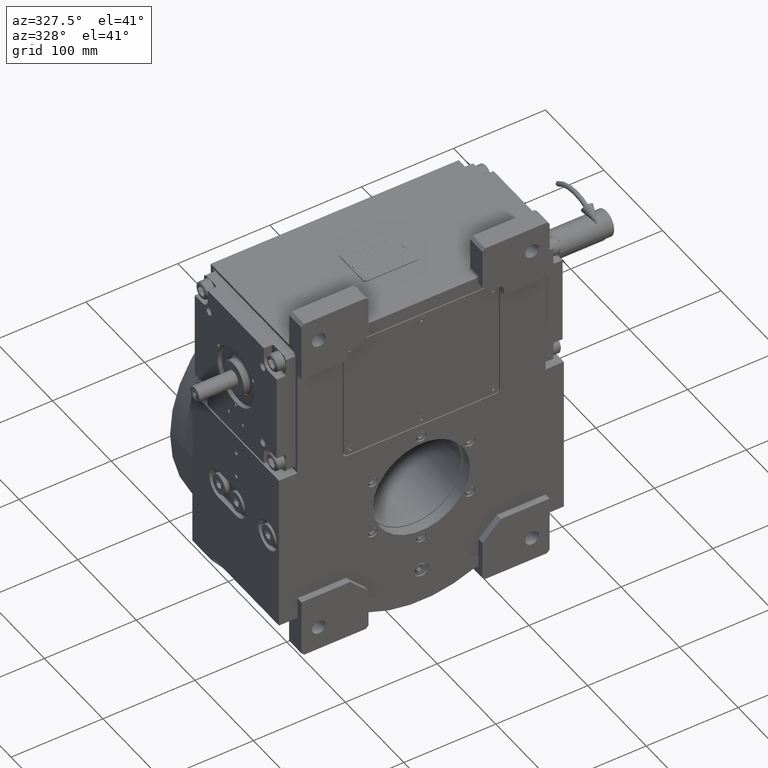
[diagram: clean part render]
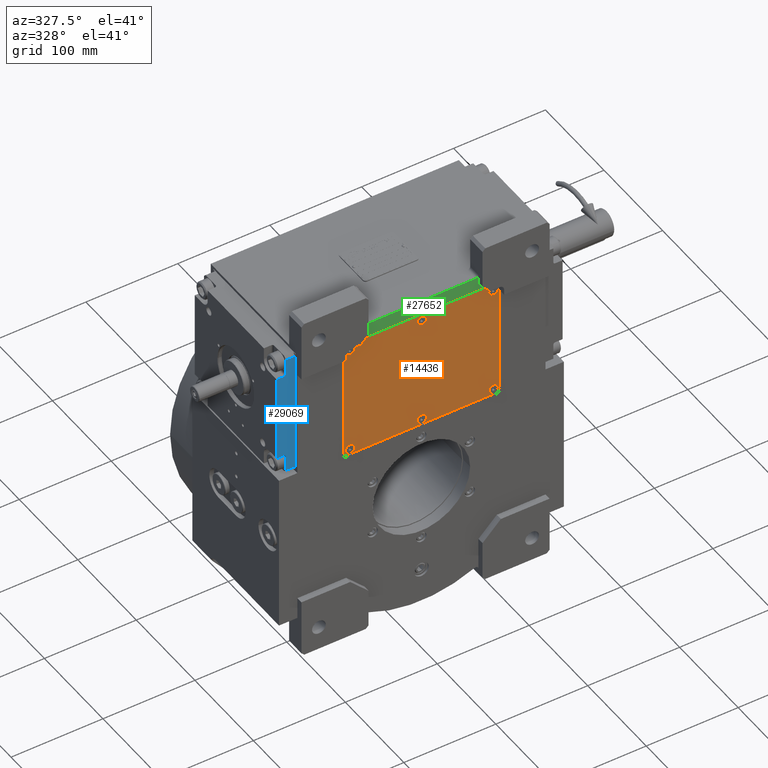
[diagram: same view with three faces highlighted in distinct colors, each labeled with its STEP entity id]
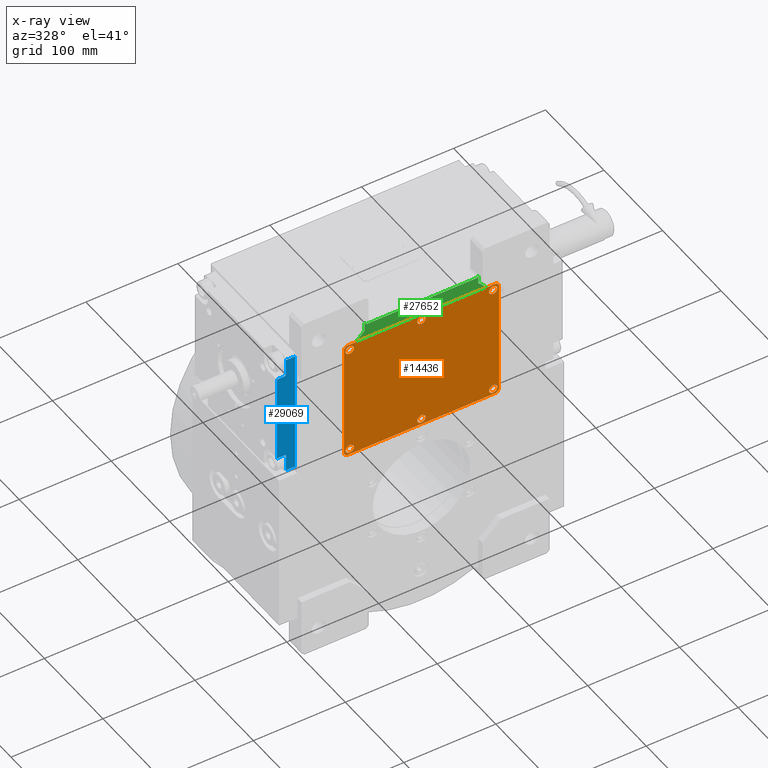
[diagram: x-ray of the same camera — body ghosted, the three highlighted faces saturated]
A machine part, auxiliary view with three faces highlighted in distinct colors.
The next image is the same camera in x-ray (body ghosted, the three faces saturated) — at least one of them is partly hidden behind the body in this view.
Their STEP definitions:

[orange] entity #14436 — the highlighted planar face has unit normal (0, -1, 0).
#95 = EDGE_CURVE ( 'NONE', #20742, #54532, #8365, .T. ) ;
#419 = DIRECTION ( 'NONE',  ( 0.000000000000000000, 0.000000000000000000, 1.000000000000000000 ) ) ;
#2065 = CIRCLE ( 'NONE', #49391, 4.500000000000000000 ) ;
#2094 = VERTEX_POINT ( 'NONE', #49659 ) ;
#2348 = ORIENTED_EDGE ( 'NONE', *, *, #59221, .F. ) ;
#2397 = EDGE_CURVE ( 'NONE', #28544, #5446, #26716, .T. ) ;
#2838 = EDGE_CURVE ( 'NONE', #59181, #66312, #31462, .T. ) ;
#3103 = DIRECTION ( 'NONE',  ( -0.7071067811865474617, 0.7071067811865474617, 0.000000000000000000 ) ) ;
#3483 = EDGE_CURVE ( 'NONE', #25692, #68317, #21182, .T. ) ;
#3926 = CARTESIAN_POINT ( 'NONE',  ( 78.00000000000000000, 60.00000000000000000, 3.000000000000002665 ) ) ;
#3987 = VECTOR ( 'NONE', #41030, 1000.000000000000000 ) ;
#4033 = DIRECTION ( 'NONE',  ( 1.000000000000000000, 0.000000000000000000, 0.000000000000000000 ) ) ;
#4265 = DIRECTION ( 'NONE',  ( 0.7071067811865474617, 0.7071067811865474617, 0.000000000000000000 ) ) ;
#4706 = DIRECTION ( 'NONE',  ( 0.000000000000000000, 0.000000000000000000, 1.000000000000000000 ) ) ;
#5446 = VERTEX_POINT ( 'NONE', #60432 ) ;
#5623 = CARTESIAN_POINT ( 'NONE',  ( 81.50000000000000000, 66.50000000000000000, 3.000000000000002665 ) ) ;
#5798 = DIRECTION ( 'NONE',  ( 1.000000000000000000, 0.000000000000000000, 0.000000000000000000 ) ) ;
#6127 = DIRECTION ( 'NONE',  ( 0.000000000000000000, 0.000000000000000000, 1.000000000000000000 ) ) ;
#6128 = VERTEX_POINT ( 'NONE', #33010 ) ;
#6130 = AXIS2_PLACEMENT_3D ( 'NONE', #62829, #52240, #26164 ) ;
#6432 = ORIENTED_EDGE ( 'NONE', *, *, #12713, .T. ) ;
#6705 = CARTESIAN_POINT ( 'NONE',  ( -81.50000000000000000, 66.50000000000000000, 3.000000000000002665 ) ) ;
#8365 = CIRCLE ( 'NONE', #41051, 4.500000000000003553 ) ;
#8419 = CARTESIAN_POINT ( 'NONE',  ( -84.50000000000000000, 63.50000000000000000, 3.000000000000002665 ) ) ;
#8621 = CIRCLE ( 'NONE', #59299, 4.500000000000003553 ) ;
#8640 = CARTESIAN_POINT ( 'NONE',  ( 84.50000000000000000, -63.50000000000000000, 3.000000000000002665 ) ) ;
#8994 = CARTESIAN_POINT ( 'NONE',  ( 78.00000000000000000, 60.00000000000000000, 3.000000000000002665 ) ) ;
#9216 = FACE_OUTER_BOUND ( 'NONE', #18434, .T. ) ;
#9811 = CARTESIAN_POINT ( 'NONE',  ( -84.50000000000000000, -63.50000000000000000, 3.000000000000002665 ) ) ;
#9847 = ORIENTED_EDGE ( 'NONE', *, *, #27873, .F. ) ;
#10052 = DIRECTION ( 'NONE',  ( 1.000000000000000000, 0.000000000000000000, 0.000000000000000000 ) ) ;
#10630 = DIRECTION ( 'NONE',  ( 0.7071067811865474617, -0.7071067811865474617, 0.000000000000000000 ) ) ;
#10662 = CARTESIAN_POINT ( 'NONE',  ( 84.50000000000000000, 63.50000000000000000, 3.000000000000002665 ) ) ;
#10698 = EDGE_CURVE ( 'NONE', #18057, #58723, #48359, .T. ) ;
#11364 = EDGE_CURVE ( 'NONE', #56060, #2094, #58061, .T. ) ;
#11936 = CARTESIAN_POINT ( 'NONE',  ( 78.00000000000000000, -60.00000000000000000, 3.000000000000002665 ) ) ;
#12713 = EDGE_CURVE ( 'NONE', #66312, #59004, #40838, .T. ) ;
#13568 = DIRECTION ( 'NONE',  ( 1.000000000000000000, 0.000000000000000000, 0.000000000000000000 ) ) ;
#13673 = ORIENTED_EDGE ( 'NONE', *, *, #14890, .F. ) ;
#13954 = DIRECTION ( 'NONE',  ( 0.000000000000000000, 0.000000000000000000, 1.000000000000000000 ) ) ;
#14436 = ADVANCED_FACE ( 'NONE', ( #9216, #31100, #52591, #41667, #47310, #14859, #53276 ), #68123, .T. ) ;
#14859 = FACE_BOUND ( 'NONE', #60916, .T. ) ;
#14890 = EDGE_CURVE ( 'NONE', #58005, #30220, #51268, .T. ) ;
#16406 = EDGE_LOOP ( 'NONE', ( #42037, #37721 ) ) ;
#18017 = EDGE_CURVE ( 'NONE', #2094, #56060, #8621, .T. ) ;
#18057 = VERTEX_POINT ( 'NONE', #9811 ) ;
#18434 = EDGE_LOOP ( 'NONE', ( #39622, #6432, #52791, #35176, #22068, #44655, #32619, #45661 ) ) ;
#18590 = ORIENTED_EDGE ( 'NONE', *, *, #32721, .F. ) ;
#18633 = CARTESIAN_POINT ( 'NONE',  ( 73.50000000000000000, 60.00000000000000000, 3.000000000000002665 ) ) ;
#19344 = ORIENTED_EDGE ( 'NONE', *, *, #11364, .F. ) ;
#19486 = CARTESIAN_POINT ( 'NONE',  ( 81.50000000000000000, -66.50000000000000000, 3.000000000000002665 ) ) ;
#19583 = VECTOR ( 'NONE', #4265, 1000.000000000000114 ) ;
#19863 = DIRECTION ( 'NONE',  ( -1.000000000000000000, 0.000000000000000000, 0.000000000000000000 ) ) ;
#20047 = CARTESIAN_POINT ( 'NONE',  ( 84.50000000000000000, 63.50000000000000000, 3.000000000000002665 ) ) ;
#20359 = DIRECTION ( 'NONE',  ( -0.7071067811865474617, -0.7071067811865474617, 0.000000000000000000 ) ) ;
#20742 = VERTEX_POINT ( 'NONE', #36213 ) ;
#20925 = ORIENTED_EDGE ( 'NONE', *, *, #18017, .F. ) ;
#21182 = CIRCLE ( 'NONE', #33563, 4.500000000000003553 ) ;
#21977 = DIRECTION ( 'NONE',  ( -1.000000000000000000, 0.000000000000000000, 0.000000000000000000 ) ) ;
#22068 = ORIENTED_EDGE ( 'NONE', *, *, #33049, .T. ) ;
#22718 = EDGE_LOOP ( 'NONE', ( #55677, #62297 ) ) ;
#22968 = CIRCLE ( 'NONE', #34078, 4.500000000000003553 ) ;
#23021 = VERTEX_POINT ( 'NONE', #53894 ) ;
#23741 = AXIS2_PLACEMENT_3D ( 'NONE', #11936, #58832, #64832 ) ;
#23755 = VERTEX_POINT ( 'NONE', #51997 ) ;
#23833 = DIRECTION ( 'NONE',  ( 0.000000000000000000, 0.000000000000000000, 1.000000000000000000 ) ) ;
#24258 = EDGE_CURVE ( 'NONE', #66134, #6128, #58578, .T. ) ;
#24336 = AXIS2_PLACEMENT_3D ( 'NONE', #55916, #25242, #4033 ) ;
#25242 = DIRECTION ( 'NONE',  ( 0.000000000000000000, 0.000000000000000000, 1.000000000000000000 ) ) ;
#25378 = EDGE_CURVE ( 'NONE', #59004, #28544, #26274, .T. ) ;
#25421 = CIRCLE ( 'NONE', #64792, 4.500000000000000000 ) ;
#25692 = VERTEX_POINT ( 'NONE', #32845 ) ;
#26040 = EDGE_LOOP ( 'NONE', ( #2348, #47766 ) ) ;
#26164 = DIRECTION ( 'NONE',  ( 1.000000000000000000, 0.000000000000000000, 0.000000000000000000 ) ) ;
#26274 = LINE ( 'NONE', #38230, #60003 ) ;
#26277 = DIRECTION ( 'NONE',  ( 1.000000000000000000, 0.000000000000000000, 0.000000000000000000 ) ) ;
#26544 = CARTESIAN_POINT ( 'NONE',  ( -84.50000000000000000, -63.50000000000000000, 3.000000000000002665 ) ) ;
#26716 = LINE ( 'NONE', #64389, #45835 ) ;
#27690 = AXIS2_PLACEMENT_3D ( 'NONE', #42188, #42547, #5798 ) ;
#27873 = EDGE_CURVE ( 'NONE', #23755, #23021, #25421, .T. ) ;
#28530 = DIRECTION ( 'NONE',  ( 0.000000000000000000, 0.000000000000000000, 1.000000000000000000 ) ) ;
#28544 = VERTEX_POINT ( 'NONE', #6705 ) ;
#29287 = CARTESIAN_POINT ( 'NONE',  ( 84.50000000000000000, -63.50000000000000000, 3.000000000000002665 ) ) ;
#29817 = DIRECTION ( 'NONE',  ( 0.000000000000000000, 1.000000000000000000, 0.000000000000000000 ) ) ;
#30220 = VERTEX_POINT ( 'NONE', #32847 ) ;
#30434 = DIRECTION ( 'NONE',  ( 0.000000000000000000, 0.000000000000000000, 1.000000000000000000 ) ) ;
#30783 = VERTEX_POINT ( 'NONE', #52719 ) ;
#31100 = FACE_BOUND ( 'NONE', #16406, .T. ) ;
#31462 = LINE ( 'NONE', #8640, #55946 ) ;
#32619 = ORIENTED_EDGE ( 'NONE', *, *, #69691, .T. ) ;
#32721 = EDGE_CURVE ( 'NONE', #30220, #58005, #2065, .T. ) ;
#32845 = CARTESIAN_POINT ( 'NONE',  ( -82.50000000000000000, -60.00000000000000000, 3.000000000000002665 ) ) ;
#32847 = CARTESIAN_POINT ( 'NONE',  ( -4.500000000000000000, -60.00000000000000000, 3.000000000000002665 ) ) ;
#33010 = CARTESIAN_POINT ( 'NONE',  ( 82.50000000000000000, -60.00000000000000000, 3.000000000000002665 ) ) ;
#33049 = EDGE_CURVE ( 'NONE', #5446, #18057, #34897, .T. ) ;
#33563 = AXIS2_PLACEMENT_3D ( 'NONE', #63803, #28530, #59885 ) ;
#34078 = AXIS2_PLACEMENT_3D ( 'NONE', #41246, #62050, #40538 ) ;
#34897 = LINE ( 'NONE', #8419, #47180 ) ;
#35176 = ORIENTED_EDGE ( 'NONE', *, *, #2397, .T. ) ;
#35403 = LINE ( 'NONE', #56893, #3987 ) ;
#36213 = CARTESIAN_POINT ( 'NONE',  ( 82.50000000000000000, 60.00000000000000000, 3.000000000000002665 ) ) ;
#37721 = ORIENTED_EDGE ( 'NONE', *, *, #63728, .F. ) ;
#37847 = CARTESIAN_POINT ( 'NONE',  ( -73.50000000000000000, -60.00000000000000000, 3.000000000000002665 ) ) ;
#38230 = CARTESIAN_POINT ( 'NONE',  ( 81.50000000000000000, 66.50000000000000000, 3.000000000000002665 ) ) ;
#39622 = ORIENTED_EDGE ( 'NONE', *, *, #2838, .T. ) ;
#39822 = DIRECTION ( 'NONE',  ( 0.000000000000000000, -1.000000000000000000, 0.000000000000000000 ) ) ;
#39833 = EDGE_LOOP ( 'NONE', ( #52417, #9847 ) ) ;
#39910 = EDGE_CURVE ( 'NONE', #6128, #66134, #43824, .T. ) ;
#40538 = DIRECTION ( 'NONE',  ( 1.000000000000000000, 0.000000000000000000, 0.000000000000000000 ) ) ;
#40838 = LINE ( 'NONE', #20047, #51381 ) ;
#41030 = DIRECTION ( 'NONE',  ( 1.000000000000000000, 0.000000000000000000, 0.000000000000000000 ) ) ;
#41051 = AXIS2_PLACEMENT_3D ( 'NONE', #8994, #4706, #26277 ) ;
#41246 = CARTESIAN_POINT ( 'NONE',  ( -78.00000000000000000, -60.00000000000000000, 3.000000000000002665 ) ) ;
#41667 = FACE_BOUND ( 'NONE', #43668, .T. ) ;
#42037 = ORIENTED_EDGE ( 'NONE', *, *, #95, .F. ) ;
#42188 = CARTESIAN_POINT ( 'NONE',  ( 0.000000000000000000, -60.00000000000000000, 3.000000000000002665 ) ) ;
#42547 = DIRECTION ( 'NONE',  ( 0.000000000000000000, 0.000000000000000000, 1.000000000000000000 ) ) ;
#43564 = CARTESIAN_POINT ( 'NONE',  ( -78.00000000000000000, 60.00000000000000000, 3.000000000000002665 ) ) ;
#43668 = EDGE_LOOP ( 'NONE', ( #19344, #20925 ) ) ;
#43824 = CIRCLE ( 'NONE', #47184, 4.500000000000003553 ) ;
#43911 = DIRECTION ( 'NONE',  ( -1.000000000000000000, 0.000000000000000000, 0.000000000000000000 ) ) ;
#44655 = ORIENTED_EDGE ( 'NONE', *, *, #10698, .T. ) ;
#45565 = EDGE_CURVE ( 'NONE', #23021, #23755, #48716, .T. ) ;
#45661 = ORIENTED_EDGE ( 'NONE', *, *, #60284, .T. ) ;
#45835 = VECTOR ( 'NONE', #20359, 1000.000000000000114 ) ;
#47180 = VECTOR ( 'NONE', #39822, 1000.000000000000000 ) ;
#47184 = AXIS2_PLACEMENT_3D ( 'NONE', #57642, #13954, #10052 ) ;
#47310 = FACE_BOUND ( 'NONE', #22718, .T. ) ;
#47484 = DIRECTION ( 'NONE',  ( 0.000000000000000000, 0.000000000000000000, 1.000000000000000000 ) ) ;
#47766 = ORIENTED_EDGE ( 'NONE', *, *, #3483, .F. ) ;
#48359 = LINE ( 'NONE', #26544, #52735 ) ;
#48716 = CIRCLE ( 'NONE', #54305, 4.500000000000000000 ) ;
#48743 = CARTESIAN_POINT ( 'NONE',  ( 0.000000000000000000, -60.00000000000000000, 3.000000000000002665 ) ) ;
#49391 = AXIS2_PLACEMENT_3D ( 'NONE', #48743, #419, #21977 ) ;
#49659 = CARTESIAN_POINT ( 'NONE',  ( -82.50000000000000000, 60.00000000000000000, 3.000000000000002665 ) ) ;
#50317 = CIRCLE ( 'NONE', #63849, 4.500000000000003553 ) ;
#50843 = CARTESIAN_POINT ( 'NONE',  ( -81.50000000000000000, -66.50000000000000000, 3.000000000000002665 ) ) ;
#50936 = CARTESIAN_POINT ( 'NONE',  ( 0.000000000000000000, 60.00000000000000000, 3.000000000000002665 ) ) ;
#51268 = CIRCLE ( 'NONE', #27690, 4.500000000000000000 ) ;
#51381 = VECTOR ( 'NONE', #3103, 1000.000000000000114 ) ;
#51997 = CARTESIAN_POINT ( 'NONE',  ( -4.500000000000000000, 60.00000000000000000, 3.000000000000002665 ) ) ;
#52240 = DIRECTION ( 'NONE',  ( 0.000000000000000000, 0.000000000000000000, 1.000000000000000000 ) ) ;
#52417 = ORIENTED_EDGE ( 'NONE', *, *, #45565, .F. ) ;
#52591 = FACE_BOUND ( 'NONE', #39833, .T. ) ;
#52600 = LINE ( 'NONE', #19486, #19583 ) ;
#52719 = CARTESIAN_POINT ( 'NONE',  ( 81.50000000000000000, -66.50000000000000000, 3.000000000000002665 ) ) ;
#52735 = VECTOR ( 'NONE', #10630, 1000.000000000000114 ) ;
#52791 = ORIENTED_EDGE ( 'NONE', *, *, #25378, .T. ) ;
#53276 = FACE_BOUND ( 'NONE', #26040, .T. ) ;
#53894 = CARTESIAN_POINT ( 'NONE',  ( 4.500000000000000000, 60.00000000000000000, 3.000000000000002665 ) ) ;
#54305 = AXIS2_PLACEMENT_3D ( 'NONE', #50936, #23833, #13568 ) ;
#54532 = VERTEX_POINT ( 'NONE', #18633 ) ;
#55677 = ORIENTED_EDGE ( 'NONE', *, *, #39910, .F. ) ;
#55916 = CARTESIAN_POINT ( 'NONE',  ( -78.00000000000000000, 60.00000000000000000, 3.000000000000002665 ) ) ;
#55946 = VECTOR ( 'NONE', #29817, 1000.000000000000000 ) ;
#56060 = VERTEX_POINT ( 'NONE', #60964 ) ;
#56893 = CARTESIAN_POINT ( 'NONE',  ( -81.50000000000000000, -66.50000000000000000, 3.000000000000002665 ) ) ;
#57642 = CARTESIAN_POINT ( 'NONE',  ( 78.00000000000000000, -60.00000000000000000, 3.000000000000002665 ) ) ;
#58005 = VERTEX_POINT ( 'NONE', #63687 ) ;
#58061 = CIRCLE ( 'NONE', #24336, 4.500000000000003553 ) ;
#58578 = CIRCLE ( 'NONE', #23741, 4.500000000000003553 ) ;
#58723 = VERTEX_POINT ( 'NONE', #50843 ) ;
#58832 = DIRECTION ( 'NONE',  ( 0.000000000000000000, 0.000000000000000000, 1.000000000000000000 ) ) ;
#59004 = VERTEX_POINT ( 'NONE', #5623 ) ;
#59016 = DIRECTION ( 'NONE',  ( -1.000000000000000000, 0.000000000000000000, 0.000000000000000000 ) ) ;
#59181 = VERTEX_POINT ( 'NONE', #29287 ) ;
#59221 = EDGE_CURVE ( 'NONE', #68317, #25692, #22968, .T. ) ;
#59299 = AXIS2_PLACEMENT_3D ( 'NONE', #43564, #6127, #43911 ) ;
#59473 = CARTESIAN_POINT ( 'NONE',  ( 73.50000000000000000, -60.00000000000000000, 3.000000000000002665 ) ) ;
#59885 = DIRECTION ( 'NONE',  ( -1.000000000000000000, 0.000000000000000000, 0.000000000000000000 ) ) ;
#60003 = VECTOR ( 'NONE', #59016, 1000.000000000000000 ) ;
#60284 = EDGE_CURVE ( 'NONE', #30783, #59181, #52600, .T. ) ;
#60432 = CARTESIAN_POINT ( 'NONE',  ( -84.50000000000000000, 63.50000000000000000, 3.000000000000002665 ) ) ;
#60916 = EDGE_LOOP ( 'NONE', ( #13673, #18590 ) ) ;
#60964 = CARTESIAN_POINT ( 'NONE',  ( -73.50000000000000000, 60.00000000000000000, 3.000000000000002665 ) ) ;
#62050 = DIRECTION ( 'NONE',  ( 0.000000000000000000, 0.000000000000000000, 1.000000000000000000 ) ) ;
#62297 = ORIENTED_EDGE ( 'NONE', *, *, #24258, .F. ) ;
#62666 = CARTESIAN_POINT ( 'NONE',  ( 0.000000000000000000, 60.00000000000000000, 3.000000000000002665 ) ) ;
#62829 = CARTESIAN_POINT ( 'NONE',  ( 0.000000000000000000, 0.000000000000000000, 3.000000000000002665 ) ) ;
#63687 = CARTESIAN_POINT ( 'NONE',  ( 4.500000000000000000, -60.00000000000000000, 3.000000000000002665 ) ) ;
#63728 = EDGE_CURVE ( 'NONE', #54532, #20742, #50317, .T. ) ;
#63803 = CARTESIAN_POINT ( 'NONE',  ( -78.00000000000000000, -60.00000000000000000, 3.000000000000002665 ) ) ;
#63849 = AXIS2_PLACEMENT_3D ( 'NONE', #3926, #30434, #19863 ) ;
#64389 = CARTESIAN_POINT ( 'NONE',  ( -81.50000000000000000, 66.50000000000000000, 3.000000000000002665 ) ) ;
#64792 = AXIS2_PLACEMENT_3D ( 'NONE', #62666, #47484, #67617 ) ;
#64832 = DIRECTION ( 'NONE',  ( -1.000000000000000000, 0.000000000000000000, 0.000000000000000000 ) ) ;
#66134 = VERTEX_POINT ( 'NONE', #59473 ) ;
#66312 = VERTEX_POINT ( 'NONE', #10662 ) ;
#67617 = DIRECTION ( 'NONE',  ( -1.000000000000000000, 0.000000000000000000, 0.000000000000000000 ) ) ;
#68123 = PLANE ( 'NONE',  #6130 ) ;
#68317 = VERTEX_POINT ( 'NONE', #37847 ) ;
#69691 = EDGE_CURVE ( 'NONE', #58723, #30783, #35403, .T. ) ;

[blue] entity #29069 — the highlighted planar face has unit normal (-0, -1, 0).
#248 = VECTOR ( 'NONE', #32279, 1000.000000000000000 ) ;
#2371 = DIRECTION ( 'NONE',  ( -1.000000000000000000, -1.421736892386212605E-28, -4.829470157119430951E-14 ) ) ;
#4196 = DIRECTION ( 'NONE',  ( 1.000000000000000000, 1.421736892386212605E-28, 4.829470157119430951E-14 ) ) ;
#4381 = LINE ( 'NONE', #26661, #248 ) ;
#5238 = CARTESIAN_POINT ( 'NONE',  ( -67.00000000000267164, -10.00000000000000888, -70.00000000000322586 ) ) ;
#6667 = VECTOR ( 'NONE', #69169, 1000.000000000000000 ) ;
#7002 = CARTESIAN_POINT ( 'NONE',  ( -67.00000000000267164, 0.000000000000000000, -70.00000000000322586 ) ) ;
#7413 = ORIENTED_EDGE ( 'NONE', *, *, #21803, .F. ) ;
#7693 = CARTESIAN_POINT ( 'NONE',  ( -50.00000000000270717, -12.00000000000001066, -70.00000000000241585 ) ) ;
#9370 = EDGE_CURVE ( 'NONE', #47089, #50296, #4381, .T. ) ;
#10144 = ORIENTED_EDGE ( 'NONE', *, *, #51448, .F. ) ;
#10333 = CARTESIAN_POINT ( 'NONE',  ( 66.99999999999675993, -10.00000000000000888, -69.99999999999623412 ) ) ;
#10550 = LINE ( 'NONE', #5238, #62620 ) ;
#12663 = CARTESIAN_POINT ( 'NONE',  ( -50.00000000000270717, -10.00000000000000888, -70.00000000000241585 ) ) ;
#13875 = ORIENTED_EDGE ( 'NONE', *, *, #26569, .T. ) ;
#13881 = ORIENTED_EDGE ( 'NONE', *, *, #52618, .F. ) ;
#15146 = AXIS2_PLACEMENT_3D ( 'NONE', #7693, #52120, #66958 ) ;
#15622 = VECTOR ( 'NONE', #26519, 1000.000000000000000 ) ;
#16478 = DIRECTION ( 'NONE',  ( -1.417176290277903630E-28, -1.000000000000000000, -6.439293542825910301E-15 ) ) ;
#16672 = ORIENTED_EDGE ( 'NONE', *, *, #67075, .T. ) ;
#17136 = CARTESIAN_POINT ( 'NONE',  ( -67.00000000000267164, -10.00000000000000888, -70.00000000000322586 ) ) ;
#17754 = CARTESIAN_POINT ( 'NONE',  ( -48.00000000000270717, -12.00000000000001066, -70.00000000000241585 ) ) ;
#18324 = ORIENTED_EDGE ( 'NONE', *, *, #39909, .T. ) ;
#18974 = CARTESIAN_POINT ( 'NONE',  ( 69.99999999999675993, 0.000000000000000000, -69.99999999999678835 ) ) ;
#20744 = ORIENTED_EDGE ( 'NONE', *, *, #9370, .T. ) ;
#21164 = ORIENTED_EDGE ( 'NONE', *, *, #30712, .T. ) ;
#21803 = EDGE_CURVE ( 'NONE', #47089, #38693, #41668, .T. ) ;
#22791 = DIRECTION ( 'NONE',  ( -1.417176290277903630E-28, -1.000000000000000000, -6.439293542825910301E-15 ) ) ;
#23566 = VERTEX_POINT ( 'NONE', #17136 ) ;
#23640 = CARTESIAN_POINT ( 'NONE',  ( 66.99999999999675993, 0.000000000000000000, -69.99999999999623412 ) ) ;
#25747 = VECTOR ( 'NONE', #16478, 1000.000000000000000 ) ;
#26222 = CARTESIAN_POINT ( 'NONE',  ( 47.99999999999673861, -12.00000000000001066, -69.99999999999759837 ) ) ;
#26519 = DIRECTION ( 'NONE',  ( 1.417176290277903630E-28, 1.000000000000000000, 6.439293542825910301E-15 ) ) ;
#26569 = EDGE_CURVE ( 'NONE', #36400, #38693, #64637, .T. ) ;
#26661 = CARTESIAN_POINT ( 'NONE',  ( 47.99999999999673861, -19.99999999999998934, -69.99999999999759837 ) ) ;
#27214 = LINE ( 'NONE', #49049, #6667 ) ;
#28523 = FACE_OUTER_BOUND ( 'NONE', #62285, .T. ) ;
#29069 = ADVANCED_FACE ( 'NONE', ( #28523 ), #29215, .T. ) ;
#29134 = CARTESIAN_POINT ( 'NONE',  ( 47.99999999999673861, -19.99999999999998934, -69.99999999999759837 ) ) ;
#29215 = PLANE ( 'NONE',  #39053 ) ;
#30712 = EDGE_CURVE ( 'NONE', #32474, #36400, #47445, .T. ) ;
#30835 = DIRECTION ( 'NONE',  ( 0.000000000000000000, 1.000000000000000000, 6.938893903907228378E-15 ) ) ;
#31101 = CARTESIAN_POINT ( 'NONE',  ( 47.99999999999673861, -19.99999999999998934, -69.99999999999759837 ) ) ;
#31931 = DIRECTION ( 'NONE',  ( -1.000000000000000000, -1.421736892386212605E-28, -4.829470157119430951E-14 ) ) ;
#32279 = DIRECTION ( 'NONE',  ( -1.000000000000000000, -1.421736892386212605E-28, -4.829470157119430951E-14 ) ) ;
#32474 = VERTEX_POINT ( 'NONE', #10333 ) ;
#34029 = CARTESIAN_POINT ( 'NONE',  ( 49.99999999999673861, -10.00000000000000888, -69.99999999999759837 ) ) ;
#34265 = AXIS2_PLACEMENT_3D ( 'NONE', #53714, #69247, #30835 ) ;
#34291 = CIRCLE ( 'NONE', #15146, 2.000000000000001776 ) ;
#36400 = VERTEX_POINT ( 'NONE', #34029 ) ;
#38289 = CARTESIAN_POINT ( 'NONE',  ( 66.99999999999675993, 0.000000000000000000, -69.99999999999623412 ) ) ;
#38693 = VERTEX_POINT ( 'NONE', #26222 ) ;
#39053 = AXIS2_PLACEMENT_3D ( 'NONE', #18974, #51398, #2371 ) ;
#39909 = EDGE_CURVE ( 'NONE', #50296, #48694, #68944, .T. ) ;
#41668 = LINE ( 'NONE', #31101, #15622 ) ;
#42148 = CARTESIAN_POINT ( 'NONE',  ( 66.99999999999675993, -10.00000000000000888, -69.99999999999623412 ) ) ;
#43940 = LINE ( 'NONE', #38289, #62454 ) ;
#44328 = LINE ( 'NONE', #49605, #25747 ) ;
#47089 = VERTEX_POINT ( 'NONE', #29134 ) ;
#47445 = LINE ( 'NONE', #42148, #69440 ) ;
#48694 = VERTEX_POINT ( 'NONE', #17754 ) ;
#49049 = CARTESIAN_POINT ( 'NONE',  ( 66.99999999999675993, 0.000000000000000000, -69.99999999999623412 ) ) ;
#49519 = EDGE_CURVE ( 'NONE', #23566, #56090, #10550, .T. ) ;
#49605 = CARTESIAN_POINT ( 'NONE',  ( -67.00000000000267164, 0.000000000000000000, -70.00000000000322586 ) ) ;
#50296 = VERTEX_POINT ( 'NONE', #52022 ) ;
#51398 = DIRECTION ( 'NONE',  ( 4.829470157119430951E-14, -6.439293542825911090E-15, -1.000000000000000000 ) ) ;
#51448 = EDGE_CURVE ( 'NONE', #67050, #23566, #44328, .T. ) ;
#52022 = CARTESIAN_POINT ( 'NONE',  ( -48.00000000000270717, -19.99999999999998934, -70.00000000000241585 ) ) ;
#52120 = DIRECTION ( 'NONE',  ( 4.829470157119430951E-14, 6.439293542825911090E-15, 1.000000000000000000 ) ) ;
#52618 = EDGE_CURVE ( 'NONE', #56104, #67050, #27214, .T. ) ;
#53714 = CARTESIAN_POINT ( 'NONE',  ( 49.99999999999673861, -12.00000000000001066, -69.99999999999759837 ) ) ;
#53875 = ORIENTED_EDGE ( 'NONE', *, *, #61571, .T. ) ;
#56090 = VERTEX_POINT ( 'NONE', #12663 ) ;
#56104 = VERTEX_POINT ( 'NONE', #23640 ) ;
#61571 = EDGE_CURVE ( 'NONE', #56104, #32474, #43940, .T. ) ;
#62261 = CARTESIAN_POINT ( 'NONE',  ( -48.00000000000270717, -19.99999999999998934, -70.00000000000241585 ) ) ;
#62285 = EDGE_LOOP ( 'NONE', ( #13881, #53875, #21164, #13875, #7413, #20744, #18324, #16672, #63770, #10144 ) ) ;
#62454 = VECTOR ( 'NONE', #22791, 1000.000000000000000 ) ;
#62620 = VECTOR ( 'NONE', #4196, 1000.000000000000000 ) ;
#63648 = DIRECTION ( 'NONE',  ( 1.417176290277903630E-28, 1.000000000000000000, 6.439293542825910301E-15 ) ) ;
#63770 = ORIENTED_EDGE ( 'NONE', *, *, #49519, .F. ) ;
#64637 = CIRCLE ( 'NONE', #34265, 2.000000000000000000 ) ;
#65196 = VECTOR ( 'NONE', #63648, 1000.000000000000000 ) ;
#66958 = DIRECTION ( 'NONE',  ( 1.000000000000000000, 0.000000000000000000, 4.857225732735055447E-14 ) ) ;
#67050 = VERTEX_POINT ( 'NONE', #7002 ) ;
#67075 = EDGE_CURVE ( 'NONE', #48694, #56090, #34291, .T. ) ;
#68944 = LINE ( 'NONE', #62261, #65196 ) ;
#69169 = DIRECTION ( 'NONE',  ( -1.000000000000000000, -1.421736892386212605E-28, -4.829470157119430951E-14 ) ) ;
#69247 = DIRECTION ( 'NONE',  ( 4.829470157119430951E-14, 6.439293542825911090E-15, 1.000000000000000000 ) ) ;
#69440 = VECTOR ( 'NONE', #31931, 1000.000000000000000 ) ;

[green] entity #27652 — the highlighted planar face has unit normal (0, 1, 0).
#626 = PLANE ( 'NONE',  #40029 ) ;
#1859 = CARTESIAN_POINT ( 'NONE',  ( -62.00000000000000000, -73.00000000000000000, 229.0000000000000000 ) ) ;
#5813 = ORIENTED_EDGE ( 'NONE', *, *, #46230, .F. ) ;
#7742 = VERTEX_POINT ( 'NONE', #34681 ) ;
#9126 = CARTESIAN_POINT ( 'NONE',  ( -59.00000000000000000, -73.00000000000000000, 226.0000000000000000 ) ) ;
#10145 = EDGE_CURVE ( 'NONE', #46055, #48763, #30175, .T. ) ;
#11569 = VECTOR ( 'NONE', #25488, 1000.000000000000000 ) ;
#12536 = VECTOR ( 'NONE', #47541, 1000.000000000000114 ) ;
#16875 = DIRECTION ( 'NONE',  ( 1.000000000000000000, 0.000000000000000000, 0.000000000000000000 ) ) ;
#17869 = CARTESIAN_POINT ( 'NONE',  ( -59.00000000000000000, -73.00000000000000000, 229.0000000000000000 ) ) ;
#18787 = EDGE_CURVE ( 'NONE', #65864, #46348, #53781, .T. ) ;
#19950 = DIRECTION ( 'NONE',  ( 0.000000000000000000, 0.000000000000000000, 1.000000000000000000 ) ) ;
#21144 = DIRECTION ( 'NONE',  ( -1.000000000000000000, 0.000000000000000000, 0.000000000000000000 ) ) ;
#21476 = DIRECTION ( 'NONE',  ( 0.7071067811865474617, 0.000000000000000000, -0.7071067811865474617 ) ) ;
#23549 = EDGE_LOOP ( 'NONE', ( #48494, #27084, #30556, #5813, #48935, #41565, #63810, #41038 ) ) ;
#25115 = LINE ( 'NONE', #29698, #53184 ) ;
#25488 = DIRECTION ( 'NONE',  ( 1.000000000000000000, 0.000000000000000000, 0.000000000000000000 ) ) ;
#25796 = DIRECTION ( 'NONE',  ( 0.000000000000000000, 1.000000000000000000, 0.000000000000000000 ) ) ;
#26054 = CARTESIAN_POINT ( 'NONE',  ( -70.50000000000000000, -73.00000000000000000, 210.5000000000000000 ) ) ;
#27084 = ORIENTED_EDGE ( 'NONE', *, *, #68624, .F. ) ;
#27652 = ADVANCED_FACE ( 'NONE', ( #48267 ), #626, .F. ) ;
#29698 = CARTESIAN_POINT ( 'NONE',  ( 62.00000000000000000, -73.00000000000000000, 219.0000000000000000 ) ) ;
#30175 = LINE ( 'NONE', #30864, #47074 ) ;
#30556 = ORIENTED_EDGE ( 'NONE', *, *, #18787, .T. ) ;
#30864 = CARTESIAN_POINT ( 'NONE',  ( -62.00000000000000000, -73.00000000000000000, 219.0000000000000000 ) ) ;
#31335 = LINE ( 'NONE', #26054, #12536 ) ;
#31687 = CARTESIAN_POINT ( 'NONE',  ( 62.00000000000000000, -73.00000000000000000, 229.0000000000000000 ) ) ;
#34584 = VERTEX_POINT ( 'NONE', #9126 ) ;
#34681 = CARTESIAN_POINT ( 'NONE',  ( -70.50000000000000000, -73.00000000000000000, 210.5000000000000000 ) ) ;
#37175 = CIRCLE ( 'NONE', #54066, 3.000000000000002665 ) ;
#37654 = VECTOR ( 'NONE', #52822, 1000.000000000000000 ) ;
#37701 = CARTESIAN_POINT ( 'NONE',  ( 0.000000000000000000, -73.00000000000000000, 0.000000000000000000 ) ) ;
#38014 = LINE ( 'NONE', #31687, #37654 ) ;
#40029 = AXIS2_PLACEMENT_3D ( 'NONE', #37701, #43683, #16875 ) ;
#40235 = AXIS2_PLACEMENT_3D ( 'NONE', #52571, #25796, #47291 ) ;
#40630 = CARTESIAN_POINT ( 'NONE',  ( -62.00000000000000000, -73.00000000000000000, 219.0000000000000000 ) ) ;
#41038 = ORIENTED_EDGE ( 'NONE', *, *, #45040, .F. ) ;
#41075 = EDGE_CURVE ( 'NONE', #34584, #48763, #37175, .T. ) ;
#41565 = ORIENTED_EDGE ( 'NONE', *, *, #10145, .F. ) ;
#42757 = EDGE_CURVE ( 'NONE', #7742, #46055, #31335, .T. ) ;
#43509 = VERTEX_POINT ( 'NONE', #52832 ) ;
#43683 = DIRECTION ( 'NONE',  ( -0.000000000000000000, 1.000000000000000000, 0.000000000000000000 ) ) ;
#45040 = EDGE_CURVE ( 'NONE', #45704, #7742, #63084, .T. ) ;
#45704 = VERTEX_POINT ( 'NONE', #51650 ) ;
#46055 = VERTEX_POINT ( 'NONE', #40630 ) ;
#46230 = EDGE_CURVE ( 'NONE', #34584, #46348, #46281, .T. ) ;
#46281 = LINE ( 'NONE', #52249, #11569 ) ;
#46348 = VERTEX_POINT ( 'NONE', #48353 ) ;
#47074 = VECTOR ( 'NONE', #19950, 1000.000000000000000 ) ;
#47291 = DIRECTION ( 'NONE',  ( 1.000000000000000000, 0.000000000000000000, 0.000000000000000000 ) ) ;
#47541 = DIRECTION ( 'NONE',  ( 0.7071067811865474617, 0.000000000000000000, 0.7071067811865474617 ) ) ;
#47930 = CARTESIAN_POINT ( 'NONE',  ( 70.50000000000000000, -73.00000000000000000, 210.5000000000000000 ) ) ;
#48267 = FACE_OUTER_BOUND ( 'NONE', #23549, .T. ) ;
#48353 = CARTESIAN_POINT ( 'NONE',  ( 59.00000000000000000, -73.00000000000000000, 226.0000000000000000 ) ) ;
#48494 = ORIENTED_EDGE ( 'NONE', *, *, #57569, .F. ) ;
#48763 = VERTEX_POINT ( 'NONE', #1859 ) ;
#48935 = ORIENTED_EDGE ( 'NONE', *, *, #41075, .T. ) ;
#51650 = CARTESIAN_POINT ( 'NONE',  ( 70.50000000000000000, -73.00000000000000000, 210.5000000000000000 ) ) ;
#52249 = CARTESIAN_POINT ( 'NONE',  ( -59.00000000000000000, -73.00000000000000000, 226.0000000000000000 ) ) ;
#52571 = CARTESIAN_POINT ( 'NONE',  ( 59.00000000000000000, -73.00000000000000000, 229.0000000000000000 ) ) ;
#52822 = DIRECTION ( 'NONE',  ( 0.000000000000000000, 0.000000000000000000, -1.000000000000000000 ) ) ;
#52832 = CARTESIAN_POINT ( 'NONE',  ( 62.00000000000000000, -73.00000000000000000, 219.0000000000000000 ) ) ;
#53184 = VECTOR ( 'NONE', #21476, 1000.000000000000114 ) ;
#53781 = CIRCLE ( 'NONE', #40235, 3.000000000000002665 ) ;
#54066 = AXIS2_PLACEMENT_3D ( 'NONE', #17869, #66867, #61927 ) ;
#57569 = EDGE_CURVE ( 'NONE', #43509, #45704, #25115, .T. ) ;
#61927 = DIRECTION ( 'NONE',  ( 0.000000000000000000, 0.000000000000000000, -1.000000000000000000 ) ) ;
#63084 = LINE ( 'NONE', #47930, #66697 ) ;
#63810 = ORIENTED_EDGE ( 'NONE', *, *, #42757, .F. ) ;
#65864 = VERTEX_POINT ( 'NONE', #69034 ) ;
#66697 = VECTOR ( 'NONE', #21144, 1000.000000000000000 ) ;
#66867 = DIRECTION ( 'NONE',  ( 0.000000000000000000, 1.000000000000000000, 0.000000000000000000 ) ) ;
#68624 = EDGE_CURVE ( 'NONE', #65864, #43509, #38014, .T. ) ;
#69034 = CARTESIAN_POINT ( 'NONE',  ( 62.00000000000000000, -73.00000000000000000, 229.0000000000000000 ) ) ;